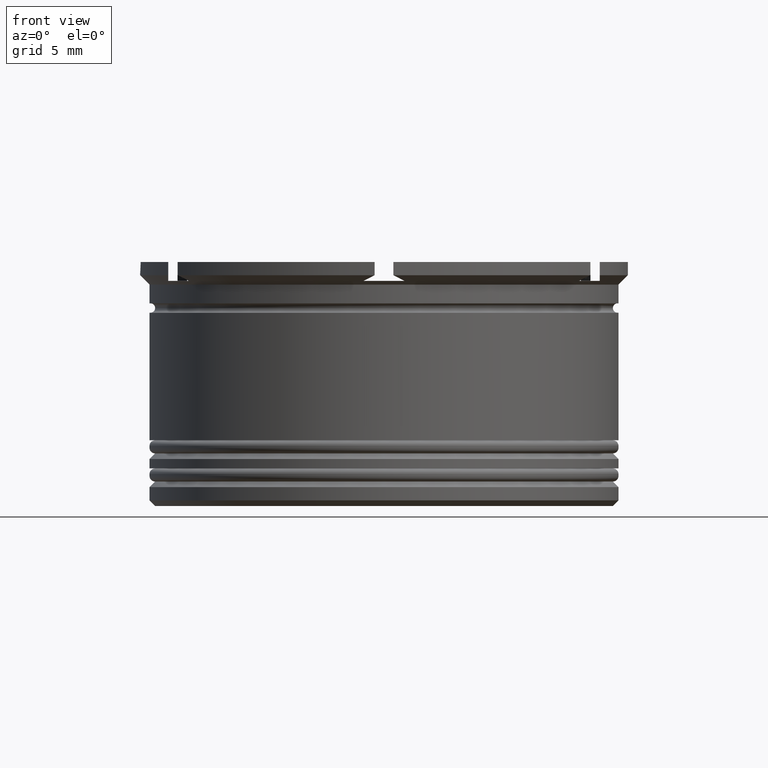
[diagram: clean part render]
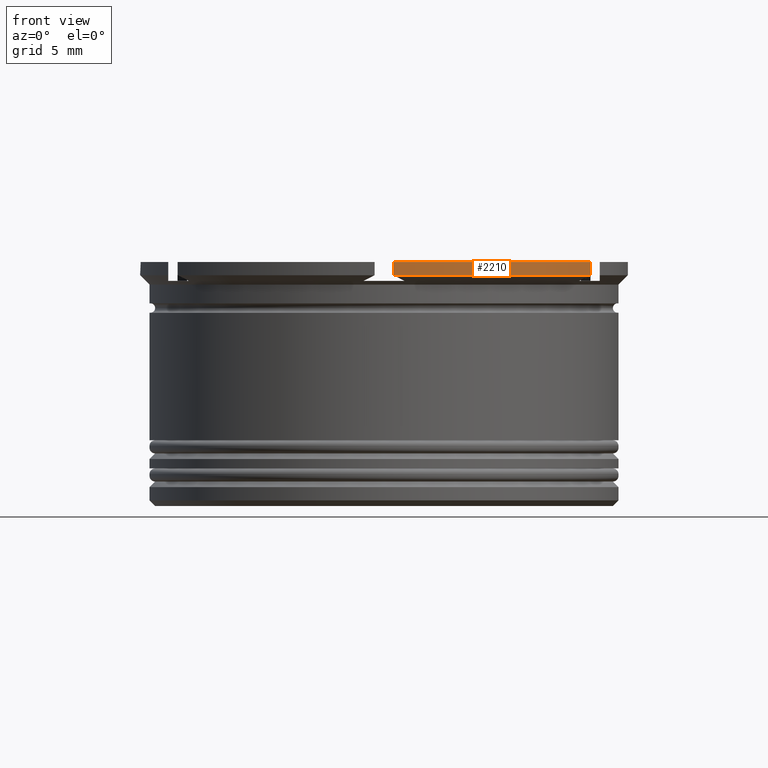
[diagram: same view with one face highlighted and labeled with its STEP entity id]
A machine part, front view. The second image highlights one B-rep face of the part: STEP entity #2210.
In plain terms, the highlighted cylindrical surface (partial cylindrical patch) has radius 13 mm, axis along (-0, -0, 1).
Its self-contained STEP definition (entity closure, byte-faithful):
#44 = LINE ( 'NONE', #262, #1679 ) ;
#60 = DIRECTION ( 'NONE',  ( -0.000000000000000000, -0.000000000000000000, 1.000000000000000000 ) ) ;
#239 = AXIS2_PLACEMENT_3D ( 'NONE', #2040, #1496, #765 ) ;
#253 = DIRECTION ( 'NONE',  ( 1.000000000000000000, 0.000000000000000000, 0.000000000000000000 ) ) ;
#262 = CARTESIAN_POINT ( 'NONE',  ( 10.99999999999999645, -6.928203230275510549, 0.000000000000000000 ) ) ;
#271 = VERTEX_POINT ( 'NONE', #1910 ) ;
#296 = CARTESIAN_POINT ( 'NONE',  ( 0.4999999999999995559, -12.99038105676657651, 0.000000000000000000 ) ) ;
#404 = DIRECTION ( 'NONE',  ( -1.000000000000000000, 8.881784197001252323E-16, 0.000000000000000000 ) ) ;
#637 = FACE_OUTER_BOUND ( 'NONE', #1923, .T. ) ;
#765 = DIRECTION ( 'NONE',  ( 1.000000000000000000, 0.000000000000000000, 0.000000000000000000 ) ) ;
#790 = DIRECTION ( 'NONE',  ( -0.000000000000000000, -0.000000000000000000, 1.000000000000000000 ) ) ;
#804 = VERTEX_POINT ( 'NONE', #296 ) ;
#841 = EDGE_CURVE ( 'NONE', #271, #804, #2141, .T. ) ;
#842 = VERTEX_POINT ( 'NONE', #1024 ) ;
#879 = ORIENTED_EDGE ( 'NONE', *, *, #1047, .T. ) ;
#890 = CIRCLE ( 'NONE', #2240, 12.99999999999999822 ) ;
#989 = ORIENTED_EDGE ( 'NONE', *, *, #2122, .F. ) ;
#1024 = CARTESIAN_POINT ( 'NONE',  ( 10.99999999999999645, -6.928203230275510549, 0.000000000000000000 ) ) ;
#1043 = CARTESIAN_POINT ( 'NONE',  ( 0.4999999999999995559, -12.99038105676657651, 0.000000000000000000 ) ) ;
#1047 = EDGE_CURVE ( 'NONE', #271, #1442, #890, .T. ) ;
#1061 = EDGE_CURVE ( 'NONE', #804, #842, #1196, .T. ) ;
#1144 = CARTESIAN_POINT ( 'NONE',  ( 10.99999999999999645, -6.928203230275510549, -0.7000000000000029532 ) ) ;
#1196 = CIRCLE ( 'NONE', #239, 12.99999999999999822 ) ;
#1376 = ORIENTED_EDGE ( 'NONE', *, *, #1061, .F. ) ;
#1442 = VERTEX_POINT ( 'NONE', #1144 ) ;
#1496 = DIRECTION ( 'NONE',  ( -0.000000000000000000, -0.000000000000000000, 1.000000000000000000 ) ) ;
#1502 = CYLINDRICAL_SURFACE ( 'NONE', #1831, 12.99999999999999822 ) ;
#1505 = CARTESIAN_POINT ( 'NONE',  ( 0.000000000000000000, 0.000000000000000000, -0.7000000000000018430 ) ) ;
#1679 = VECTOR ( 'NONE', #2254, 1000.000000000000000 ) ;
#1831 = AXIS2_PLACEMENT_3D ( 'NONE', #2239, #60, #253 ) ;
#1910 = CARTESIAN_POINT ( 'NONE',  ( 0.4999999999999993339, -12.99038105676657651, -0.7000000000000029532 ) ) ;
#1923 = EDGE_LOOP ( 'NONE', ( #989, #1376, #2302, #879 ) ) ;
#1937 = DIRECTION ( 'NONE',  ( -0.000000000000000000, -0.000000000000000000, 1.000000000000000000 ) ) ;
#2040 = CARTESIAN_POINT ( 'NONE',  ( 0.000000000000000000, 0.000000000000000000, 0.000000000000000000 ) ) ;
#2122 = EDGE_CURVE ( 'NONE', #842, #1442, #44, .T. ) ;
#2141 = LINE ( 'NONE', #1043, #2288 ) ;
#2210 = ADVANCED_FACE ( 'NONE', ( #637 ), #1502, .T. ) ;
#2239 = CARTESIAN_POINT ( 'NONE',  ( 0.000000000000000000, 0.000000000000000000, 0.000000000000000000 ) ) ;
#2240 = AXIS2_PLACEMENT_3D ( 'NONE', #1505, #790, #404 ) ;
#2254 = DIRECTION ( 'NONE',  ( 0.000000000000000000, 0.000000000000000000, -1.000000000000000000 ) ) ;
#2288 = VECTOR ( 'NONE', #1937, 1000.000000000000000 ) ;
#2302 = ORIENTED_EDGE ( 'NONE', *, *, #841, .F. ) ;